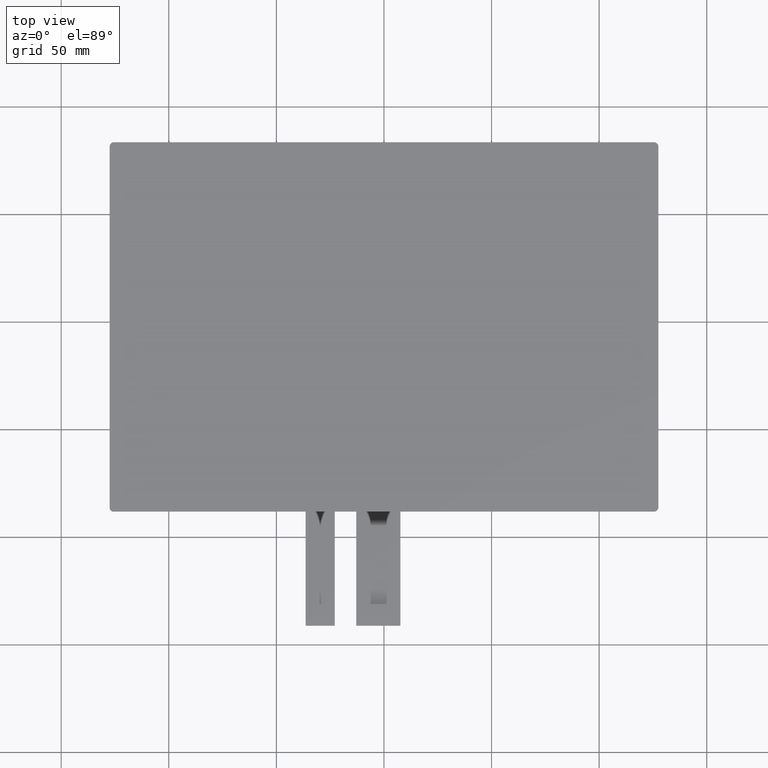
[diagram: clean part render]
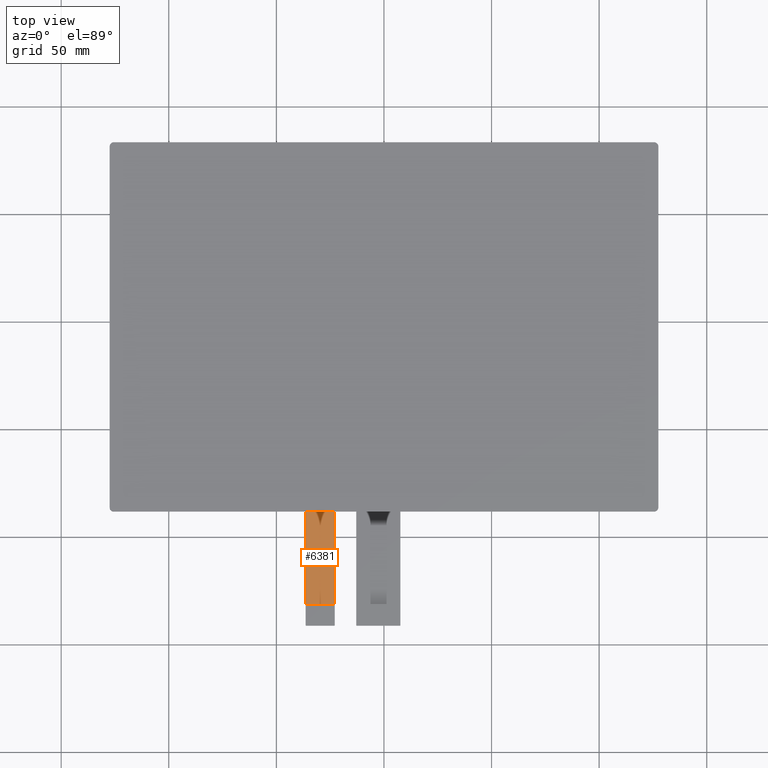
[diagram: same view with one face highlighted and labeled with its STEP entity id]
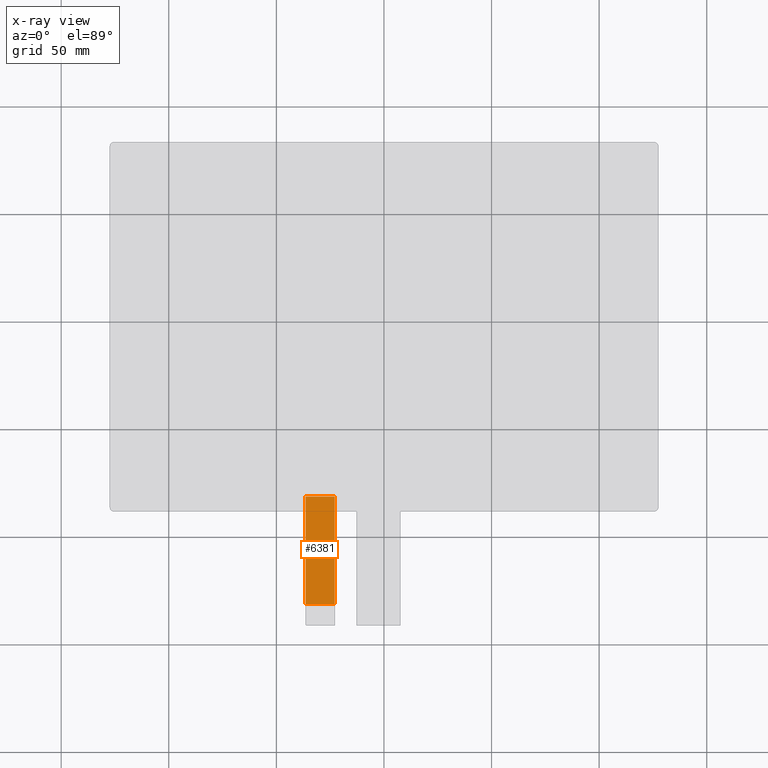
[diagram: x-ray of the same camera — body ghosted, the highlighted face saturated]
A machine part, top view. The second image highlights one B-rep face of the part: STEP entity #6381.
The next image is the same camera in x-ray: the body ghosted, the highlighted face saturated — about 0% of this face is hidden behind the body in this view.
In plain terms, the highlighted planar face has unit normal (0, 0, 1).
Its self-contained STEP definition (entity closure, byte-faithful):
#337=FACE_OUTER_BOUND('',#647,.T.);
#647=EDGE_LOOP('',(#5707,#5708,#5709,#5710));
#1505=LINE('',#10002,#2393);
#1517=LINE('',#10026,#2405);
#1528=LINE('',#10047,#2416);
#1529=LINE('',#10049,#2417);
#2393=VECTOR('',#8187,10.);
#2405=VECTOR('',#8207,10.);
#2416=VECTOR('',#8228,10.);
#2417=VECTOR('',#8231,10.);
#3032=VERTEX_POINT('',#9999);
#3033=VERTEX_POINT('',#10001);
#3041=VERTEX_POINT('',#10025);
#3046=VERTEX_POINT('',#10045);
#3917=EDGE_CURVE('',#3033,#3032,#1505,.T.);
#3929=EDGE_CURVE('',#3032,#3041,#1517,.T.);
#3940=EDGE_CURVE('',#3041,#3046,#1528,.T.);
#3941=EDGE_CURVE('',#3033,#3046,#1529,.T.);
#5707=ORIENTED_EDGE('',*,*,#3929,.T.);
#5708=ORIENTED_EDGE('',*,*,#3940,.T.);
#5709=ORIENTED_EDGE('',*,*,#3941,.F.);
#5710=ORIENTED_EDGE('',*,*,#3917,.T.);
#6057=PLANE('',#6727);
#6381=ADVANCED_FACE('',(#337),#6057,.T.);
#6727=AXIS2_PLACEMENT_3D('',#10048,#8229,#8230);
#8187=DIRECTION('',(4.44089209850063E-16,-1.,0.));
#8207=DIRECTION('',(1.,0.,0.));
#8228=DIRECTION('',(-2.96059473233375E-16,1.,0.));
#8229=DIRECTION('center_axis',(0.,0.,1.));
#8230=DIRECTION('ref_axis',(1.,0.,0.));
#8231=DIRECTION('',(1.,2.28225718124229E-16,0.));
#9999=CARTESIAN_POINT('',(-36.38,-131.2,-1.25));
#10001=CARTESIAN_POINT('',(-36.38,-81.2,-1.25));
#10002=CARTESIAN_POINT('',(-36.38,-81.2,-1.25));
#10025=CARTESIAN_POINT('',(-22.88,-131.2,-1.25));
#10026=CARTESIAN_POINT('',(-26.255,-131.2,-1.25));
#10045=CARTESIAN_POINT('',(-22.88,-81.2,-1.25));
#10047=CARTESIAN_POINT('',(-22.88,-141.2,-1.25));
#10048=CARTESIAN_POINT('Origin',(-29.63,-111.2,-1.25));
#10049=CARTESIAN_POINT('',(43.295,-81.2,-1.25));